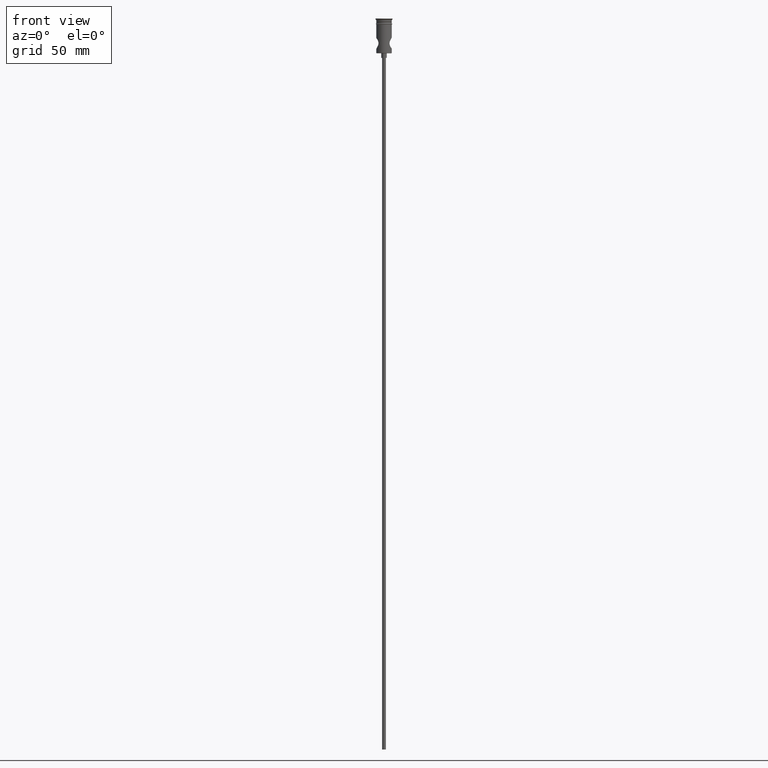
[diagram: clean part render]
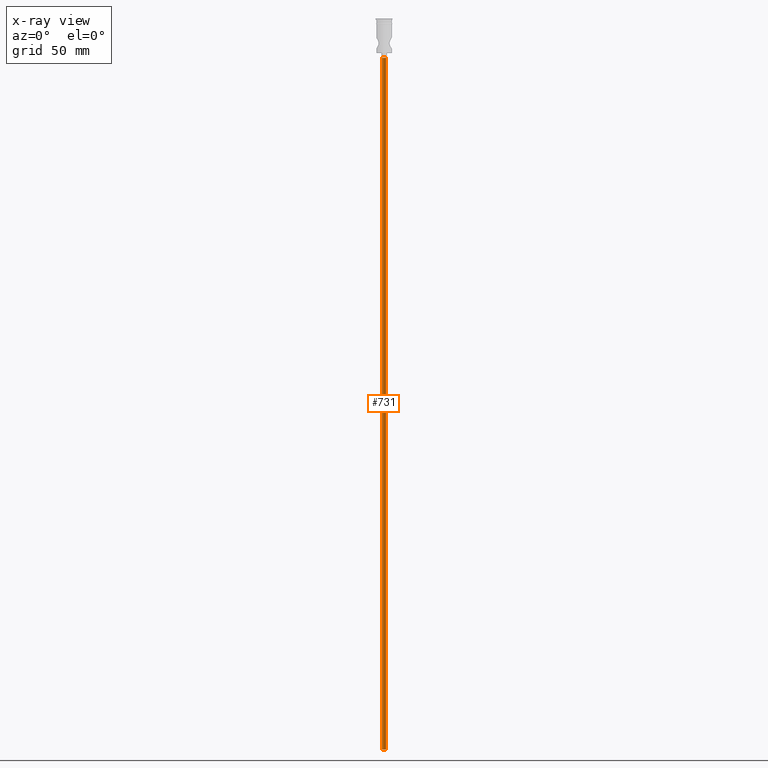
[diagram: x-ray — body ghosted, one internal face saturated and labeled with its STEP entity id]
A machine part, front view, then the same camera in x-ray: the body is ghosted and one INTERNAL B-rep face — a face not visible from any outside direction — is saturated and labeled: STEP entity #731.
In plain terms, the highlighted cylindrical surface (edge-blend (fillet) strip) has radius 1.25 mm, axis along (-0, -0, 1).
Its self-contained STEP definition (entity closure, byte-faithful):
#3 = VERTEX_POINT ( 'NONE', #248 ) ;
#28 = VERTEX_POINT ( 'NONE', #784 ) ;
#79 = ORIENTED_EDGE ( 'NONE', *, *, #1213, .F. ) ;
#122 = AXIS2_PLACEMENT_3D ( 'NONE', #732, #299, #948 ) ;
#170 = CARTESIAN_POINT ( 'NONE',  ( -1.250000000000000000, 1.530808498934191571E-16, -472.5000000000000568 ) ) ;
#218 = VECTOR ( 'NONE', #469, 1000.000000000000000 ) ;
#248 = CARTESIAN_POINT ( 'NONE',  ( 1.250000000000000000, 0.000000000000000000, -472.5000000000000568 ) ) ;
#256 = LINE ( 'NONE', #693, #218 ) ;
#299 = DIRECTION ( 'NONE',  ( 0.000000000000000000, 0.000000000000000000, -1.000000000000000000 ) ) ;
#304 = EDGE_CURVE ( 'NONE', #527, #829, #542, .T. ) ;
#469 = DIRECTION ( 'NONE',  ( -0.000000000000000000, -0.000000000000000000, 1.000000000000000000 ) ) ;
#491 = CIRCLE ( 'NONE', #1300, 1.250000000000000000 ) ;
#514 = CIRCLE ( 'NONE', #122, 1.250000000000000000 ) ;
#527 = VERTEX_POINT ( 'NONE', #170 ) ;
#542 = LINE ( 'NONE', #764, #672 ) ;
#556 = FACE_OUTER_BOUND ( 'NONE', #935, .T. ) ;
#559 = ORIENTED_EDGE ( 'NONE', *, *, #1283, .F. ) ;
#658 = DIRECTION ( 'NONE',  ( -0.000000000000000000, -0.000000000000000000, 1.000000000000000000 ) ) ;
#668 = CARTESIAN_POINT ( 'NONE',  ( 0.000000000000000000, 0.000000000000000000, -25.50000000000000000 ) ) ;
#672 = VECTOR ( 'NONE', #658, 1000.000000000000000 ) ;
#684 = DIRECTION ( 'NONE',  ( 0.000000000000000000, 0.000000000000000000, -1.000000000000000000 ) ) ;
#693 = CARTESIAN_POINT ( 'NONE',  ( 1.250000000000000000, 0.000000000000000000, -472.5000000000000568 ) ) ;
#731 = ADVANCED_FACE ( 'NONE', ( #556 ), #1217, .T. ) ;
#732 = CARTESIAN_POINT ( 'NONE',  ( 0.000000000000000000, 0.000000000000000000, -472.5000000000000568 ) ) ;
#763 = ORIENTED_EDGE ( 'NONE', *, *, #304, .T. ) ;
#764 = CARTESIAN_POINT ( 'NONE',  ( -1.250000000000000000, 1.530808498934191571E-16, -472.5000000000000568 ) ) ;
#784 = CARTESIAN_POINT ( 'NONE',  ( 1.250000000000000000, 0.000000000000000000, -25.50000000000000000 ) ) ;
#791 = AXIS2_PLACEMENT_3D ( 'NONE', #1432, #1211, #1312 ) ;
#828 = CARTESIAN_POINT ( 'NONE',  ( -1.250000000000000000, 1.530808498934191571E-16, -25.50000000000000000 ) ) ;
#829 = VERTEX_POINT ( 'NONE', #828 ) ;
#935 = EDGE_LOOP ( 'NONE', ( #559, #763, #1356, #79 ) ) ;
#948 = DIRECTION ( 'NONE',  ( -1.000000000000000000, 0.000000000000000000, 0.000000000000000000 ) ) ;
#1121 = DIRECTION ( 'NONE',  ( -1.000000000000000000, 0.000000000000000000, 0.000000000000000000 ) ) ;
#1211 = DIRECTION ( 'NONE',  ( -0.000000000000000000, -0.000000000000000000, 1.000000000000000000 ) ) ;
#1213 = EDGE_CURVE ( 'NONE', #3, #28, #256, .T. ) ;
#1217 = CYLINDRICAL_SURFACE ( 'NONE', #791, 1.250000000000000000 ) ;
#1283 = EDGE_CURVE ( 'NONE', #527, #3, #514, .T. ) ;
#1300 = AXIS2_PLACEMENT_3D ( 'NONE', #668, #684, #1121 ) ;
#1312 = DIRECTION ( 'NONE',  ( 1.000000000000000000, 0.000000000000000000, 0.000000000000000000 ) ) ;
#1356 = ORIENTED_EDGE ( 'NONE', *, *, #1393, .T. ) ;
#1393 = EDGE_CURVE ( 'NONE', #829, #28, #491, .T. ) ;
#1432 = CARTESIAN_POINT ( 'NONE',  ( 0.000000000000000000, 0.000000000000000000, -472.5000000000000568 ) ) ;